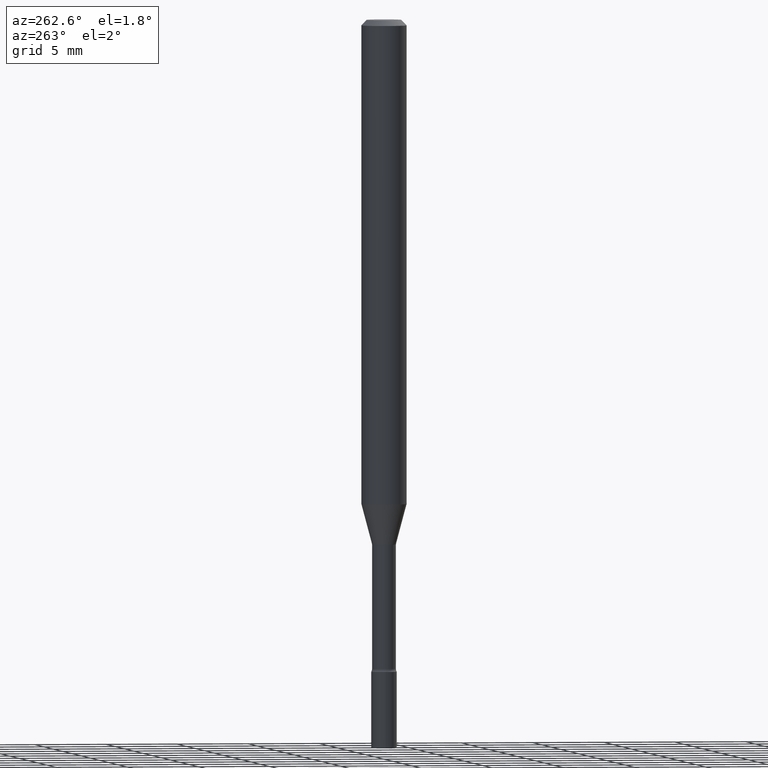
[diagram: clean part render]
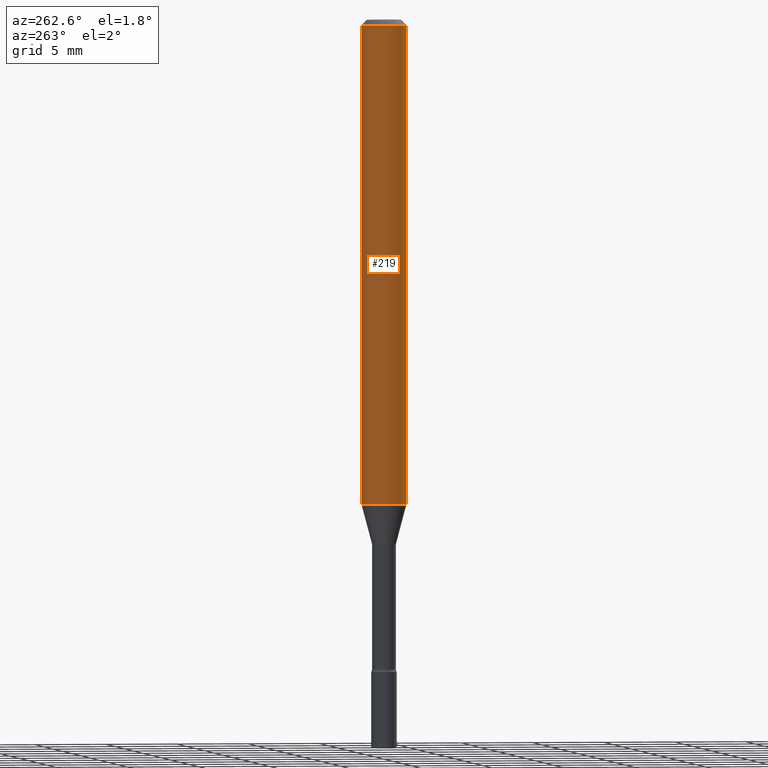
[diagram: same view with one face highlighted and labeled with its STEP entity id]
A machine part, auxiliary view. The second image highlights one B-rep face of the part: STEP entity #219.
In plain terms, the highlighted cylindrical surface (edge-blend (fillet) strip) has radius 1.5875 mm, axis along (-0, 0, 1).
Its self-contained STEP definition (entity closure, byte-faithful):
#5 = VECTOR ( 'NONE', #147, 39.37007874015748143 ) ;
#23 = CARTESIAN_POINT ( 'NONE',  ( 4.440892098500625669E-16, 0.06250000000000000000, -2.182157160808850159E-16 ) ) ;
#40 = AXIS2_PLACEMENT_3D ( 'NONE', #380, #494, #99 ) ;
#67 = CARTESIAN_POINT ( 'NONE',  ( 3.668234508538909571E-31, -5.237177185941251155E-17, -0.01500000000000003067 ) ) ;
#75 = CARTESIAN_POINT ( 'NONE',  ( 4.440892098500952553E-16, 0.06249999999999993755, -0.01500000000000024751 ) ) ;
#76 = CARTESIAN_POINT ( 'NONE',  ( -4.364351673553916201E-16, -0.06250000000000000000, 2.182157160808850159E-16 ) ) ;
#78 = CARTESIAN_POINT ( 'NONE',  ( -4.364351673553912750E-16, -0.06250000000000005551, -0.01499999999999981209 ) ) ;
#79 = FACE_OUTER_BOUND ( 'NONE', #389, .T. ) ;
#95 = DIRECTION ( 'NONE',  ( -6.982962677686265922E-15, -1.000000000000000000, 3.483106191921935554E-15 ) ) ;
#96 = VERTEX_POINT ( 'NONE', #75 ) ;
#99 = DIRECTION ( 'NONE',  ( -6.982962677686265922E-15, -1.000000000000000000, 4.370956789862821150E-15 ) ) ;
#147 = DIRECTION ( 'NONE',  ( -2.445489672359267828E-29, 3.491451457294160649E-15, 1.000000000000000000 ) ) ;
#148 = ORIENTED_EDGE ( 'NONE', *, *, #319, .F. ) ;
#167 = DIRECTION ( 'NONE',  ( -2.445489672359267828E-29, 3.491451457294160649E-15, 1.000000000000000000 ) ) ;
#174 = ORIENTED_EDGE ( 'NONE', *, *, #423, .T. ) ;
#196 = CIRCLE ( 'NONE', #40, 0.06250000000000000000 ) ;
#213 = LINE ( 'NONE', #23, #510 ) ;
#219 = ADVANCED_FACE ( 'NONE', ( #79 ), #333, .T. ) ;
#233 = CARTESIAN_POINT ( 'NONE',  ( -4.364351673553592768E-16, -0.06250000000000467681, -1.329531296095961101 ) ) ;
#252 = DIRECTION ( 'NONE',  ( -2.445489672359268108E-29, 3.491451457294160255E-15, 1.000000000000000000 ) ) ;
#271 = EDGE_CURVE ( 'NONE', #512, #514, #196, .T. ) ;
#300 = DIRECTION ( 'NONE',  ( -2.445489672359268108E-29, 3.491451457294160255E-15, 1.000000000000000000 ) ) ;
#319 = EDGE_CURVE ( 'NONE', #96, #407, #444, .T. ) ;
#332 = ORIENTED_EDGE ( 'NONE', *, *, #271, .T. ) ;
#333 = CYLINDRICAL_SURFACE ( 'NONE', #429, 0.06250000000000000000 ) ;
#360 = EDGE_CURVE ( 'NONE', #512, #96, #213, .T. ) ;
#371 = ORIENTED_EDGE ( 'NONE', *, *, #360, .F. ) ;
#378 = DIRECTION ( 'NONE',  ( -6.982962677686265922E-15, -1.000000000000000000, 3.491451457294160255E-15 ) ) ;
#380 = CARTESIAN_POINT ( 'NONE',  ( 3.251355053681105951E-29, -4.641993981272437762E-15, -1.329531296095961546 ) ) ;
#389 = EDGE_LOOP ( 'NONE', ( #371, #332, #174, #148 ) ) ;
#407 = VERTEX_POINT ( 'NONE', #78 ) ;
#423 = EDGE_CURVE ( 'NONE', #514, #407, #477, .T. ) ;
#429 = AXIS2_PLACEMENT_3D ( 'NONE', #497, #252, #378 ) ;
#444 = CIRCLE ( 'NONE', #466, 0.06250000000000000000 ) ;
#466 = AXIS2_PLACEMENT_3D ( 'NONE', #67, #300, #95 ) ;
#477 = LINE ( 'NONE', #76, #5 ) ;
#494 = DIRECTION ( 'NONE',  ( -2.445489672359268108E-29, 3.491451457294160255E-15, 1.000000000000000000 ) ) ;
#497 = CARTESIAN_POINT ( 'NONE',  ( 0.000000000000000000, 0.000000000000000000, 0.000000000000000000 ) ) ;
#510 = VECTOR ( 'NONE', #167, 39.37007874015748143 ) ;
#512 = VERTEX_POINT ( 'NONE', #515 ) ;
#514 = VERTEX_POINT ( 'NONE', #233 ) ;
#515 = CARTESIAN_POINT ( 'NONE',  ( 4.440892098500948609E-16, 0.06249999999999532319, -1.329531296095961768 ) ) ;